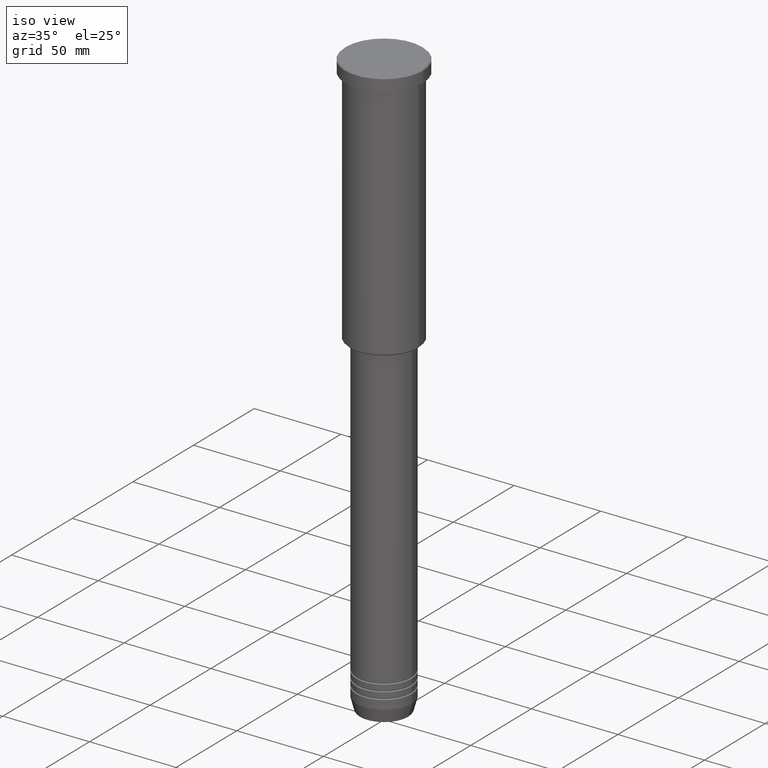
[diagram: clean part render]
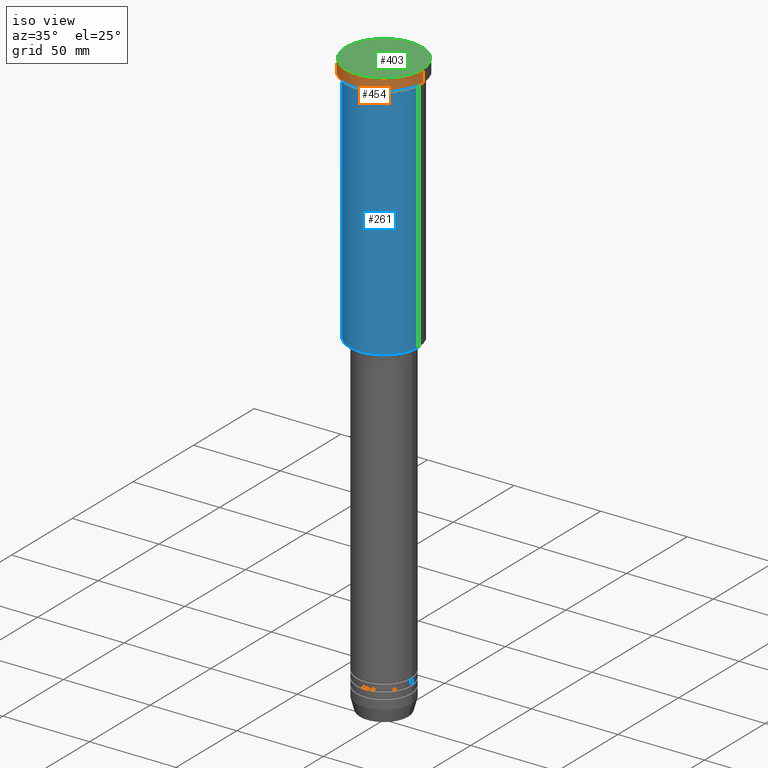
[diagram: same view with three faces highlighted in distinct colors, each labeled with its STEP entity id]
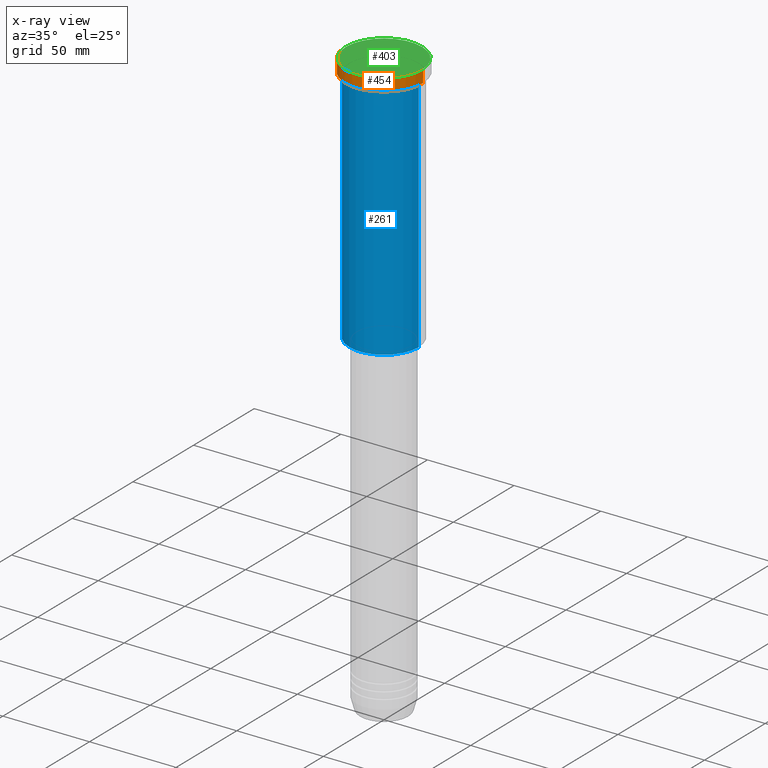
[diagram: x-ray of the same camera — body ghosted, the three highlighted faces saturated]
A machine part, iso view with three faces highlighted in distinct colors.
The next image is the same camera in x-ray (body ghosted, the three faces saturated) — at least one of them is partly hidden behind the body in this view.
Their STEP definitions:

[orange] entity #454 — the highlighted cylindrical surface (partial cylindrical patch) has radius 22.5 mm, axis along (-0, -0, 1).
#22 = CARTESIAN_POINT ( 'NONE',  ( 0.000000000000000000, 0.000000000000000000, 0.000000000000000000 ) ) ;
#66 = VERTEX_POINT ( 'NONE', #1001 ) ;
#100 = DIRECTION ( 'NONE',  ( -0.000000000000000000, -0.000000000000000000, 1.000000000000000000 ) ) ;
#184 = CARTESIAN_POINT ( 'NONE',  ( 0.000000000000000000, 0.000000000000000000, -6.999999999999995559 ) ) ;
#224 = VERTEX_POINT ( 'NONE', #1116 ) ;
#257 = VERTEX_POINT ( 'NONE', #608 ) ;
#296 = ORIENTED_EDGE ( 'NONE', *, *, #1181, .F. ) ;
#304 = ORIENTED_EDGE ( 'NONE', *, *, #1088, .T. ) ;
#305 = DIRECTION ( 'NONE',  ( 1.000000000000000000, 0.000000000000000000, 0.000000000000000000 ) ) ;
#319 = AXIS2_PLACEMENT_3D ( 'NONE', #571, #576, #305 ) ;
#341 = CIRCLE ( 'NONE', #319, 22.50000000000000000 ) ;
#352 = LINE ( 'NONE', #1163, #469 ) ;
#418 = CIRCLE ( 'NONE', #833, 22.50000000000000000 ) ;
#440 = DIRECTION ( 'NONE',  ( -0.000000000000000000, -0.000000000000000000, 1.000000000000000000 ) ) ;
#451 = DIRECTION ( 'NONE',  ( -0.000000000000000000, -0.000000000000000000, 1.000000000000000000 ) ) ;
#454 = ADVANCED_FACE ( 'NONE', ( #475 ), #839, .T. ) ;
#469 = VECTOR ( 'NONE', #440, 1000.000000000000000 ) ;
#474 = ORIENTED_EDGE ( 'NONE', *, *, #512, .T. ) ;
#475 = FACE_OUTER_BOUND ( 'NONE', #1093, .T. ) ;
#512 = EDGE_CURVE ( 'NONE', #257, #1011, #341, .T. ) ;
#546 = DIRECTION ( 'NONE',  ( 1.000000000000000000, 0.000000000000000000, 0.000000000000000000 ) ) ;
#571 = CARTESIAN_POINT ( 'NONE',  ( 0.000000000000000000, 0.000000000000000000, -0.4999999999999935052 ) ) ;
#576 = DIRECTION ( 'NONE',  ( 0.000000000000000000, 0.000000000000000000, -1.000000000000000000 ) ) ;
#577 = ORIENTED_EDGE ( 'NONE', *, *, #890, .T. ) ;
#596 = CARTESIAN_POINT ( 'NONE',  ( -22.50000000000000000, 2.755455298081544778E-15, -0.4999999999999935052 ) ) ;
#608 = CARTESIAN_POINT ( 'NONE',  ( 22.50000000000000000, 0.000000000000000000, -0.4999999999999935052 ) ) ;
#641 = AXIS2_PLACEMENT_3D ( 'NONE', #22, #100, #1018 ) ;
#647 = DIRECTION ( 'NONE',  ( -0.000000000000000000, -0.000000000000000000, 1.000000000000000000 ) ) ;
#833 = AXIS2_PLACEMENT_3D ( 'NONE', #184, #451, #546 ) ;
#839 = CYLINDRICAL_SURFACE ( 'NONE', #641, 22.50000000000000000 ) ;
#890 = EDGE_CURVE ( 'NONE', #66, #224, #418, .T. ) ;
#1001 = CARTESIAN_POINT ( 'NONE',  ( -22.50000000000000000, 2.755455298081544778E-15, -6.999999999999995559 ) ) ;
#1011 = VERTEX_POINT ( 'NONE', #596 ) ;
#1015 = VECTOR ( 'NONE', #647, 1000.000000000000000 ) ;
#1018 = DIRECTION ( 'NONE',  ( 1.000000000000000000, 0.000000000000000000, 0.000000000000000000 ) ) ;
#1088 = EDGE_CURVE ( 'NONE', #224, #257, #352, .T. ) ;
#1093 = EDGE_LOOP ( 'NONE', ( #296, #577, #304, #474 ) ) ;
#1096 = CARTESIAN_POINT ( 'NONE',  ( -22.50000000000000000, 2.755455298081544778E-15, 0.000000000000000000 ) ) ;
#1116 = CARTESIAN_POINT ( 'NONE',  ( 22.50000000000000000, 0.000000000000000000, -6.999999999999995559 ) ) ;
#1163 = CARTESIAN_POINT ( 'NONE',  ( 22.50000000000000000, 0.000000000000000000, 0.000000000000000000 ) ) ;
#1169 = LINE ( 'NONE', #1096, #1015 ) ;
#1181 = EDGE_CURVE ( 'NONE', #66, #1011, #1169, .T. ) ;

[blue] entity #261 — the highlighted cylindrical surface (partial cylindrical patch) has radius 20 mm, axis along (-0, -0, 1).
#6 = EDGE_CURVE ( 'NONE', #537, #748, #181, .T. ) ;
#56 = DIRECTION ( 'NONE',  ( -0.000000000000000000, -0.000000000000000000, 1.000000000000000000 ) ) ;
#64 = EDGE_LOOP ( 'NONE', ( #756, #90, #460, #477 ) ) ;
#65 = DIRECTION ( 'NONE',  ( 1.000000000000000000, 0.000000000000000000, 0.000000000000000000 ) ) ;
#80 = EDGE_CURVE ( 'NONE', #537, #1006, #1026, .T. ) ;
#90 = ORIENTED_EDGE ( 'NONE', *, *, #6, .T. ) ;
#181 = CIRCLE ( 'NONE', #816, 20.00000000000000355 ) ;
#199 = VECTOR ( 'NONE', #302, 1000.000000000000000 ) ;
#231 = CARTESIAN_POINT ( 'NONE',  ( 20.00000000000000355, 0.000000000000000000, 0.000000000000000000 ) ) ;
#245 = AXIS2_PLACEMENT_3D ( 'NONE', #601, #772, #507 ) ;
#260 = DIRECTION ( 'NONE',  ( -0.000000000000000000, -0.000000000000000000, 1.000000000000000000 ) ) ;
#261 = ADVANCED_FACE ( 'NONE', ( #307 ), #701, .T. ) ;
#302 = DIRECTION ( 'NONE',  ( -0.000000000000000000, -0.000000000000000000, 1.000000000000000000 ) ) ;
#307 = FACE_OUTER_BOUND ( 'NONE', #64, .T. ) ;
#360 = VECTOR ( 'NONE', #56, 1000.000000000000000 ) ;
#394 = CARTESIAN_POINT ( 'NONE',  ( -20.00000000000000355, 2.449293598294706907E-15, -145.4999999999999716 ) ) ;
#460 = ORIENTED_EDGE ( 'NONE', *, *, #511, .T. ) ;
#477 = ORIENTED_EDGE ( 'NONE', *, *, #764, .F. ) ;
#507 = DIRECTION ( 'NONE',  ( 1.000000000000000000, 0.000000000000000000, 0.000000000000000000 ) ) ;
#511 = EDGE_CURVE ( 'NONE', #748, #876, #1029, .T. ) ;
#513 = CARTESIAN_POINT ( 'NONE',  ( 0.000000000000000000, 0.000000000000000000, -7.999999999999994671 ) ) ;
#537 = VERTEX_POINT ( 'NONE', #394 ) ;
#601 = CARTESIAN_POINT ( 'NONE',  ( 0.000000000000000000, 0.000000000000000000, 0.000000000000000000 ) ) ;
#701 = CYLINDRICAL_SURFACE ( 'NONE', #245, 20.00000000000000355 ) ;
#727 = AXIS2_PLACEMENT_3D ( 'NONE', #513, #260, #65 ) ;
#748 = VERTEX_POINT ( 'NONE', #1041 ) ;
#756 = ORIENTED_EDGE ( 'NONE', *, *, #80, .F. ) ;
#764 = EDGE_CURVE ( 'NONE', #1006, #876, #1174, .T. ) ;
#772 = DIRECTION ( 'NONE',  ( -0.000000000000000000, -0.000000000000000000, 1.000000000000000000 ) ) ;
#799 = CARTESIAN_POINT ( 'NONE',  ( 0.000000000000000000, 0.000000000000000000, -145.4999999999999716 ) ) ;
#811 = DIRECTION ( 'NONE',  ( -0.000000000000000000, -0.000000000000000000, 1.000000000000000000 ) ) ;
#816 = AXIS2_PLACEMENT_3D ( 'NONE', #799, #811, #1156 ) ;
#853 = CARTESIAN_POINT ( 'NONE',  ( -20.00000000000000355, 2.449293598294706907E-15, 0.000000000000000000 ) ) ;
#876 = VERTEX_POINT ( 'NONE', #998 ) ;
#998 = CARTESIAN_POINT ( 'NONE',  ( 20.00000000000000000, 0.000000000000000000, -7.999999999999994671 ) ) ;
#1006 = VERTEX_POINT ( 'NONE', #1040 ) ;
#1026 = LINE ( 'NONE', #853, #199 ) ;
#1029 = LINE ( 'NONE', #231, #360 ) ;
#1040 = CARTESIAN_POINT ( 'NONE',  ( -20.00000000000000000, 2.449293598294706513E-15, -7.999999999999994671 ) ) ;
#1041 = CARTESIAN_POINT ( 'NONE',  ( 20.00000000000000355, 0.000000000000000000, -145.4999999999999716 ) ) ;
#1156 = DIRECTION ( 'NONE',  ( -1.000000000000000000, 0.000000000000000000, 0.000000000000000000 ) ) ;
#1174 = CIRCLE ( 'NONE', #727, 20.00000000000000000 ) ;

[green] entity #403 — the highlighted planar face has unit normal (0, -0, 1).
#68 = CARTESIAN_POINT ( 'NONE',  ( 21.99999999999996447, 2.724839128102858624E-15, 0.000000000000000000 ) ) ;
#187 = DIRECTION ( 'NONE',  ( 0.000000000000000000, -0.000000000000000000, 1.000000000000000000 ) ) ;
#294 = AXIS2_PLACEMENT_3D ( 'NONE', #652, #1004, #384 ) ;
#316 = VERTEX_POINT ( 'NONE', #68 ) ;
#320 = ORIENTED_EDGE ( 'NONE', *, *, #395, .T. ) ;
#342 = CIRCLE ( 'NONE', #563, 21.99999999999996447 ) ;
#384 = DIRECTION ( 'NONE',  ( 1.000000000000000000, 0.000000000000000000, 0.000000000000000000 ) ) ;
#395 = EDGE_CURVE ( 'NONE', #316, #519, #466, .T. ) ;
#403 = ADVANCED_FACE ( 'NONE', ( #822 ), #909, .T. ) ;
#416 = EDGE_LOOP ( 'NONE', ( #860, #320 ) ) ;
#420 = DIRECTION ( 'NONE',  ( -0.000000000000000000, -0.000000000000000000, 1.000000000000000000 ) ) ;
#466 = CIRCLE ( 'NONE', #294, 21.99999999999996447 ) ;
#519 = VERTEX_POINT ( 'NONE', #1143 ) ;
#531 = DIRECTION ( 'NONE',  ( 1.000000000000000000, 0.000000000000000000, 0.000000000000000000 ) ) ;
#563 = AXIS2_PLACEMENT_3D ( 'NONE', #872, #420, #531 ) ;
#652 = CARTESIAN_POINT ( 'NONE',  ( 0.000000000000000000, 0.000000000000000000, 0.000000000000000000 ) ) ;
#749 = DIRECTION ( 'NONE',  ( 1.000000000000000000, 0.000000000000000000, 0.000000000000000000 ) ) ;
#800 = AXIS2_PLACEMENT_3D ( 'NONE', #990, #187, #749 ) ;
#822 = FACE_OUTER_BOUND ( 'NONE', #416, .T. ) ;
#860 = ORIENTED_EDGE ( 'NONE', *, *, #960, .T. ) ;
#872 = CARTESIAN_POINT ( 'NONE',  ( 0.000000000000000000, 0.000000000000000000, 0.000000000000000000 ) ) ;
#909 = PLANE ( 'NONE',  #800 ) ;
#960 = EDGE_CURVE ( 'NONE', #519, #316, #342, .T. ) ;
#990 = CARTESIAN_POINT ( 'NONE',  ( 0.000000000000000000, 0.000000000000000000, 0.000000000000000000 ) ) ;
#1004 = DIRECTION ( 'NONE',  ( -0.000000000000000000, -0.000000000000000000, 1.000000000000000000 ) ) ;
#1143 = CARTESIAN_POINT ( 'NONE',  ( -21.99999999999996447, 0.000000000000000000, 0.000000000000000000 ) ) ;